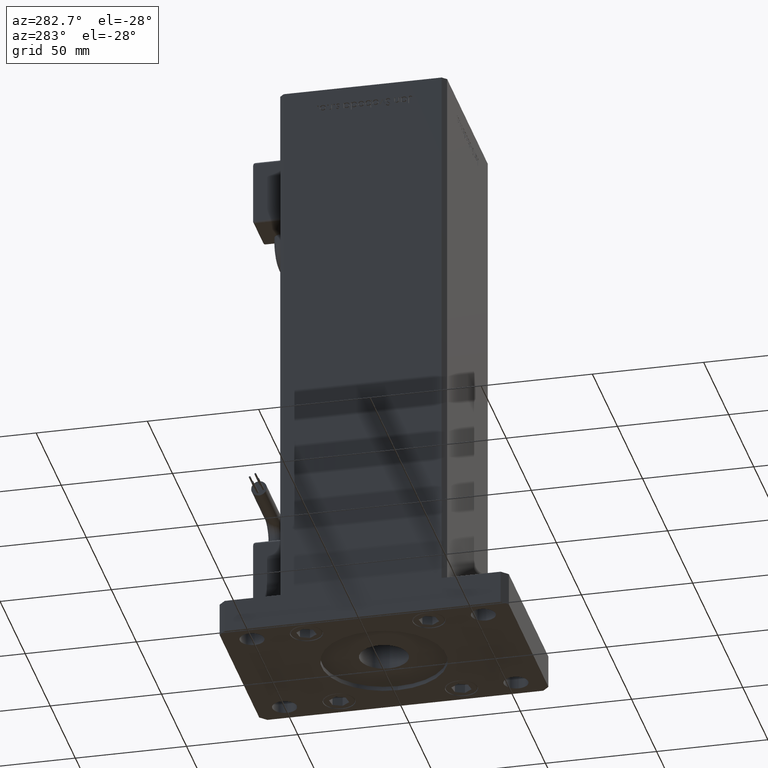
[diagram: clean part render]
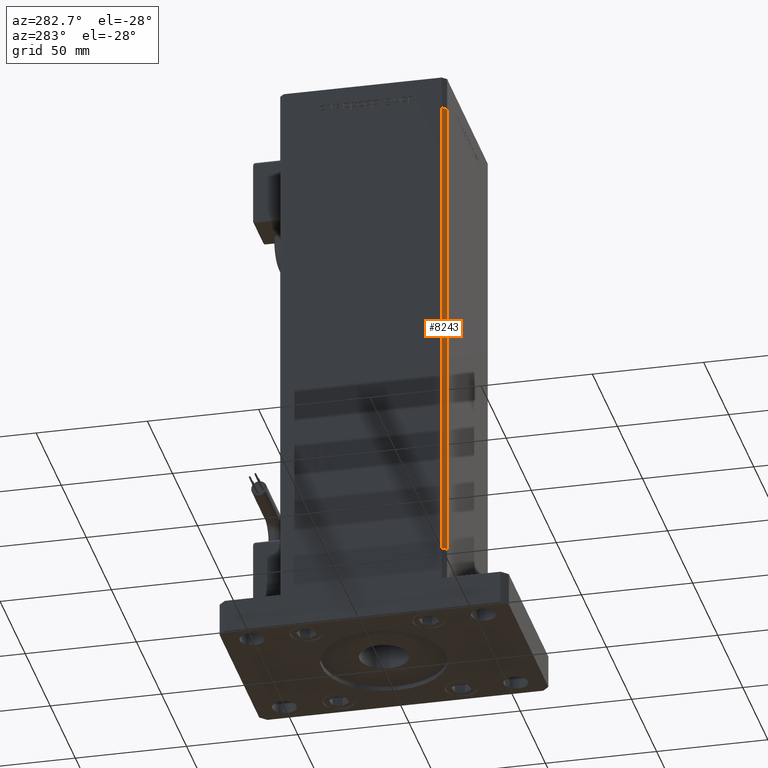
[diagram: same view with one face highlighted and labeled with its STEP entity id]
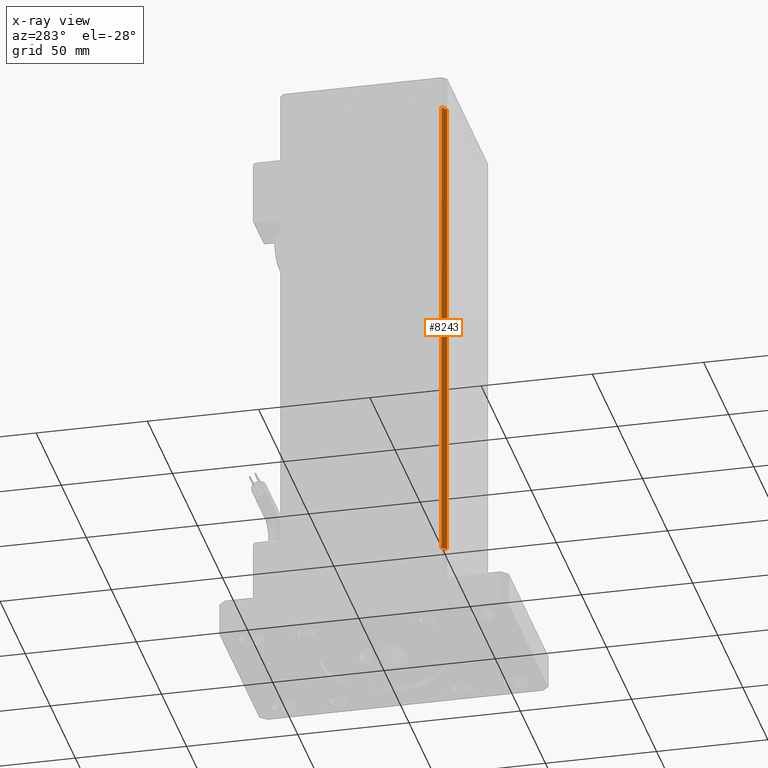
[diagram: x-ray of the same camera — body ghosted, the highlighted face saturated]
A machine part, auxiliary view. The second image highlights one B-rep face of the part: STEP entity #8243.
The next image is the same camera in x-ray: the body ghosted, the highlighted face saturated — about 0% of this face is hidden behind the body in this view.
In plain terms, the highlighted planar face has unit normal (0.7071, 0.7071, 0).
Its self-contained STEP definition (entity closure, byte-faithful):
#4574 = DIRECTION ( 'NONE',  ( -0.7071067811865474617, 0.7071067811865474617, 0.000000000000000000 ) ) ;
#5669 = DIRECTION ( 'NONE',  ( -0.000000000000000000, -0.000000000000000000, -1.000000000000000000 ) ) ;
#8243 = ADVANCED_FACE ( 'NONE', ( #8285 ), #8562, .F. ) ;
#8285 = FACE_OUTER_BOUND ( 'NONE', #17200, .T. ) ;
#8562 = PLANE ( 'NONE',  #56310 ) ;
#9275 = EDGE_CURVE ( 'NONE', #49862, #51362, #47787, .T. ) ;
#12446 = DIRECTION ( 'NONE',  ( 0.7071067811865474617, -0.7071067811865474617, 0.000000000000000000 ) ) ;
#12739 = CARTESIAN_POINT ( 'NONE',  ( -40.49999999999998579, -37.50000000000000711, 218.5000000000000000 ) ) ;
#14019 = CARTESIAN_POINT ( 'NONE',  ( -42.49999999999998579, -35.50000000000000711, 218.5000000000000000 ) ) ;
#15677 = CARTESIAN_POINT ( 'NONE',  ( -42.49999999999998579, -35.50000000000000711, 0.000000000000000000 ) ) ;
#17200 = EDGE_LOOP ( 'NONE', ( #25084, #35320, #33974, #51392 ) ) ;
#19933 = LINE ( 'NONE', #15677, #21143 ) ;
#20183 = VECTOR ( 'NONE', #12446, 1000.000000000000114 ) ;
#21070 = DIRECTION ( 'NONE',  ( 0.7071067811865475727, 0.7071067811865475727, -0.000000000000000000 ) ) ;
#21143 = VECTOR ( 'NONE', #32772, 1000.000000000000114 ) ;
#22067 = VERTEX_POINT ( 'NONE', #14019 ) ;
#23030 = EDGE_CURVE ( 'NONE', #51508, #51362, #19933, .T. ) ;
#23305 = LINE ( 'NONE', #49231, #26607 ) ;
#25084 = ORIENTED_EDGE ( 'NONE', *, *, #23030, .T. ) ;
#25537 = EDGE_CURVE ( 'NONE', #22067, #49862, #48014, .T. ) ;
#25863 = DIRECTION ( 'NONE',  ( -0.000000000000000000, -0.000000000000000000, -1.000000000000000000 ) ) ;
#26139 = CARTESIAN_POINT ( 'NONE',  ( -40.49999999999998579, -37.50000000000000711, 218.5000000000000000 ) ) ;
#26607 = VECTOR ( 'NONE', #5669, 1000.000000000000000 ) ;
#30845 = VECTOR ( 'NONE', #25863, 1000.000000000000000 ) ;
#32772 = DIRECTION ( 'NONE',  ( 0.7071067811865474617, -0.7071067811865474617, 0.000000000000000000 ) ) ;
#33045 = CARTESIAN_POINT ( 'NONE',  ( -40.49999999999998579, -37.50000000000000711, 0.000000000000000000 ) ) ;
#33974 = ORIENTED_EDGE ( 'NONE', *, *, #25537, .F. ) ;
#35320 = ORIENTED_EDGE ( 'NONE', *, *, #9275, .F. ) ;
#42378 = CARTESIAN_POINT ( 'NONE',  ( -42.49999999999998579, -35.50000000000000711, 0.000000000000000000 ) ) ;
#43012 = CARTESIAN_POINT ( 'NONE',  ( -42.49999999999998579, -35.50000000000000711, 218.5000000000000000 ) ) ;
#43463 = CARTESIAN_POINT ( 'NONE',  ( -42.49999999999998579, -35.50000000000000711, 218.5000000000000000 ) ) ;
#47609 = EDGE_CURVE ( 'NONE', #22067, #51508, #23305, .T. ) ;
#47787 = LINE ( 'NONE', #26139, #30845 ) ;
#48014 = LINE ( 'NONE', #43463, #20183 ) ;
#49231 = CARTESIAN_POINT ( 'NONE',  ( -42.49999999999998579, -35.50000000000000711, 218.5000000000000000 ) ) ;
#49862 = VERTEX_POINT ( 'NONE', #12739 ) ;
#51362 = VERTEX_POINT ( 'NONE', #33045 ) ;
#51392 = ORIENTED_EDGE ( 'NONE', *, *, #47609, .T. ) ;
#51508 = VERTEX_POINT ( 'NONE', #42378 ) ;
#56310 = AXIS2_PLACEMENT_3D ( 'NONE', #43012, #21070, #4574 ) ;